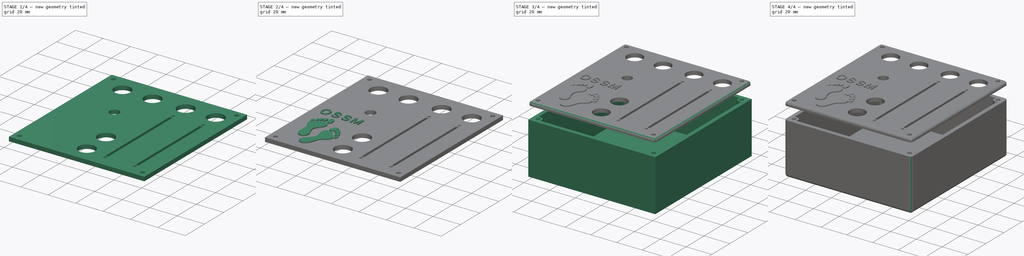
[diagram: build sequence overview — one tinted view per stage of 4, left to right]
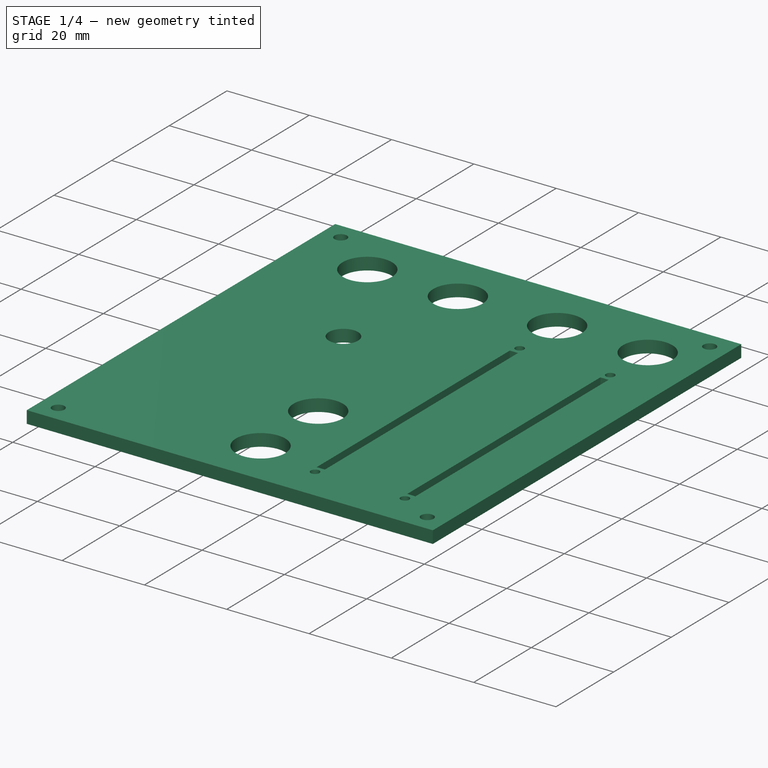
[diagram: stage 1 of 4 — iso view after this stage's code; geometry added in this stage tinted green]
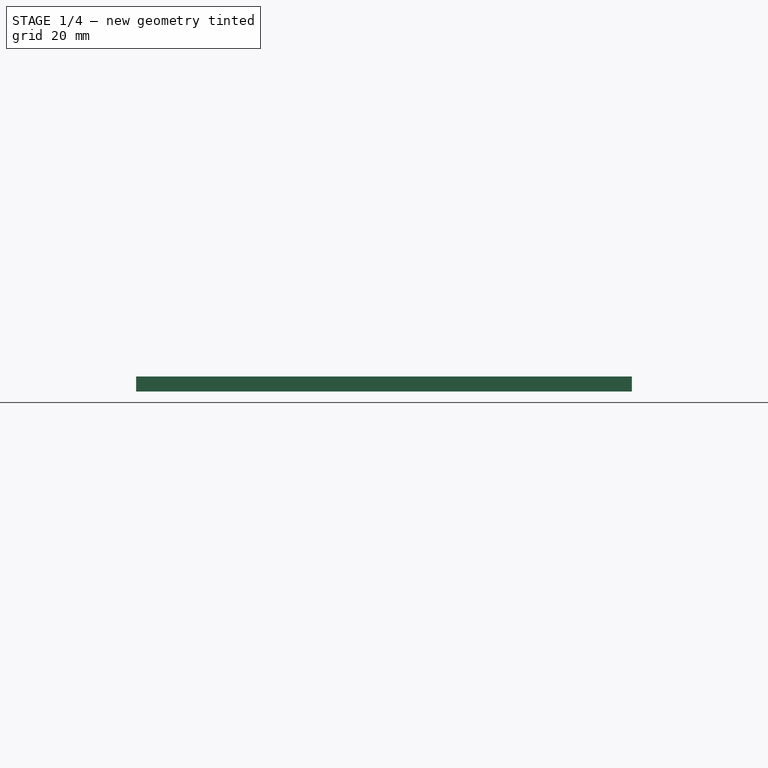
[diagram: stage 1 of 4 — front view after this stage's code; geometry added in this stage tinted green]
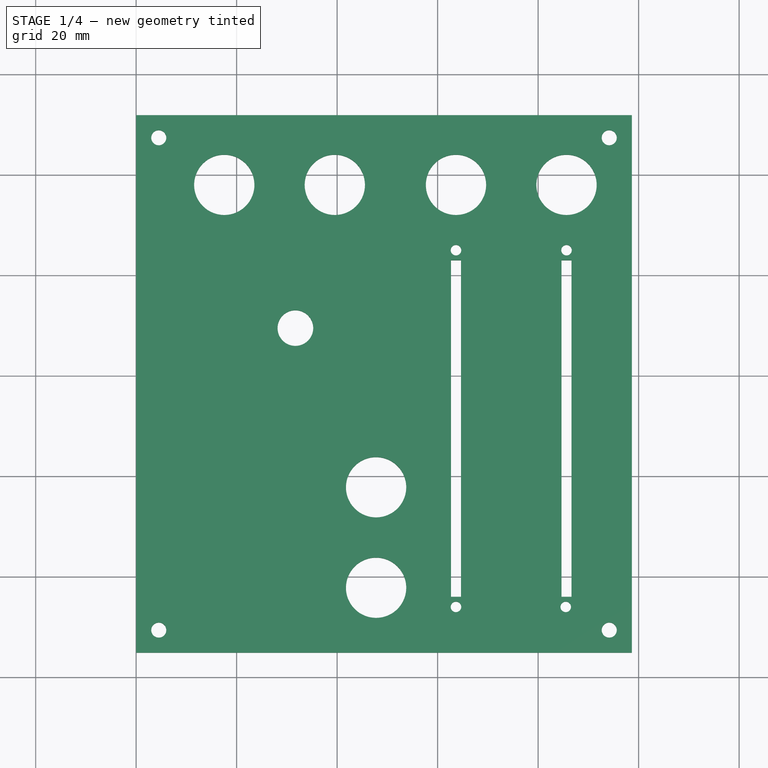
[diagram: stage 1 of 4 — top view after this stage's code; geometry added in this stage tinted green]
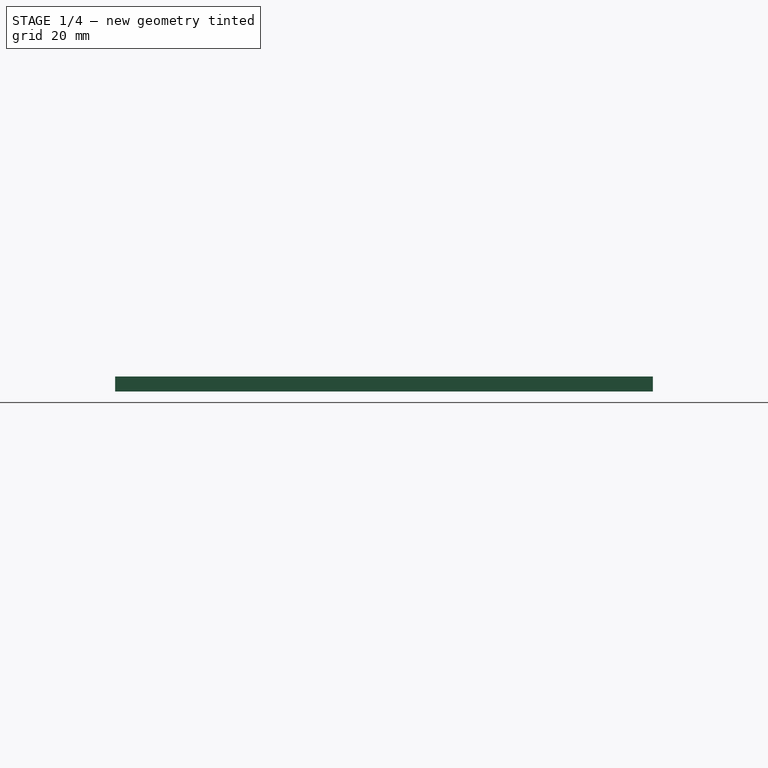
[diagram: stage 1 of 4 — right view after this stage's code; geometry added in this stage tinted green]
FCSTD DOCUMENT  (FreeCAD 1.0R39109 (Git))
Label: midi-panel-layout
License: All rights reserved
objects: Sketcher::SketchObject×9, PartDesign::Pad×5, PartDesign::Pocket×3, PartDesign::Fillet×2, PartDesign::Body×2, App::Part×1
note: 50 computed .brp shape members not serialized (recipe doc carries the construction recipe); baked Part::Feature solids carry a one-line shape summary decoded from their .brp

FEATURE [Sketcher::SketchObject] Sketch  label="layout"
  ArcFitTolerance = 1e-06
  AttachmentSupport = -> [XY_Plane001]
  FullyConstrained = false
  MakeInternals = false
  MapMode = 5
  sketch-geometry (33):
    g0: LineSegment StartX=-55.3487 StartY=111.875 StartZ=0 EndX=-55.3487 EndY=4.87529 EndZ=0
    g1: LineSegment StartX=-55.3487 StartY=4.87529 StartZ=0 EndX=98.6513 EndY=4.87529 EndZ=0
    g2: LineSegment StartX=98.6513 StartY=4.87529 StartZ=0 EndX=98.6513 EndY=111.875 EndZ=0
    g3: LineSegment StartX=98.6513 StartY=111.875 StartZ=0 EndX=-55.3487 EndY=111.875 EndZ=0
    g4: Circle CenterX=12.6513 CenterY=98.8753 CenterZ=0 NormalX=0 NormalY=0 NormalZ=1 AngleXU=0 Radius=9
    g5: Circle CenterX=34.6513 CenterY=98.8753 CenterZ=0 NormalX=0 NormalY=0 NormalZ=1 AngleXU=0 Radius=9
    g6: Circle CenterX=63.6513 CenterY=98.8753 CenterZ=0 NormalX=0 NormalY=0 NormalZ=1 AngleXU=0 Radius=9
    g7: Circle CenterX=85.6513 CenterY=98.8753 CenterZ=0 NormalX=0 NormalY=0 NormalZ=1 AngleXU=0 Radius=9
    g8: LineSegment StartX=81.9013 StartY=84.8753 StartZ=0 EndX=81.9013 EndY=9.87529 EndZ=0
    g9: LineSegment StartX=81.9013 StartY=9.87529 StartZ=0 EndX=89.4013 EndY=9.87529 EndZ=0
    g10: LineSegment StartX=89.4013 StartY=9.87529 StartZ=0 EndX=89.4013 EndY=84.8753 EndZ=0
    g11: LineSegment StartX=81.9013 StartY=84.8753 StartZ=0 EndX=85.6513 EndY=84.8753 EndZ=0
    g12: LineSegment StartX=85.6513 StartY=84.8753 StartZ=0 EndX=89.4013 EndY=84.8753 EndZ=0
    g13: LineSegment StartX=59.9013 StartY=84.8753 StartZ=0 EndX=59.9013 EndY=9.87529 EndZ=0
    g14: LineSegment StartX=59.9013 StartY=9.87529 StartZ=0 EndX=67.4013 EndY=9.87529 EndZ=0
    g15: LineSegment StartX=67.4013 StartY=9.87529 StartZ=0 EndX=67.4013 EndY=84.8753 EndZ=0
    g16: LineSegment StartX=59.9013 StartY=84.8753 StartZ=0 EndX=63.6513 EndY=84.8753 EndZ=0
    g17: LineSegment StartX=63.6513 StartY=84.8753 StartZ=0 EndX=67.4013 EndY=84.8753 EndZ=0
    g18: Circle CenterX=-41.3487 CenterY=59.8753 CenterZ=0 NormalX=0 NormalY=0 NormalZ=1 AngleXU=0 Radius=10
    g19: Circle CenterX=-41.3487 CenterY=34.8753 CenterZ=0 NormalX=0 NormalY=0 NormalZ=1 AngleXU=0 Radius=10
    g20: Circle CenterX=-16.3487 CenterY=34.8753 CenterZ=0 NormalX=0 NormalY=0 NormalZ=1 AngleXU=0 Radius=10
    g21: Circle CenterX=-16.3487 CenterY=59.8753 CenterZ=0 NormalX=0 NormalY=0 NormalZ=1 AngleXU=0 Radius=10
    g22: LineSegment [constr] StartX=-41.3487 StartY=59.8753 StartZ=0 EndX=-16.3487 EndY=59.8753 EndZ=0
    g23: LineSegment [constr] StartX=-16.3487 StartY=34.8753 StartZ=0 EndX=-41.3487 EndY=34.8753 EndZ=0
    g24: LineSegment [constr] StartX=-41.3487 StartY=34.8753 StartZ=0 EndX=-41.3487 EndY=59.8753 EndZ=0
    g25: Circle CenterX=23.6513 CenterY=47.3753 CenterZ=0 NormalX=0 NormalY=0 NormalZ=1 AngleXU=0 Radius=11
    g26: LineSegment [constr] StartX=-16.3487 StartY=59.8753 StartZ=0 EndX=-16.3487 EndY=47.3753 EndZ=0
    g27: LineSegment [constr] StartX=-16.3487 StartY=47.3753 StartZ=0 EndX=-16.3487 EndY=34.8753 EndZ=0
    g28: LineSegment [constr] StartX=-16.3487 StartY=47.3753 StartZ=0 EndX=23.6513 EndY=47.3753 EndZ=0
    g29: LineSegment [constr] StartX=63.6513 StartY=84.8753 StartZ=0 EndX=63.6513 EndY=47.3753 EndZ=0
    g30: LineSegment [constr] StartX=23.6513 StartY=47.3753 StartZ=0 EndX=63.6513 EndY=47.3753 EndZ=0
    g31: LineSegment [constr] StartX=12.6513 StartY=98.8753 StartZ=0 EndX=23.6513 EndY=98.8753 EndZ=0
    g32: LineSegment [constr] StartX=23.6513 StartY=98.8753 StartZ=0 EndX=34.6513 EndY=98.8753 EndZ=0
  constraints (90):
    c: Coincident(g0,g1)
    c: Coincident(g1,g2)
    c: Coincident(g2,g3)
    c: Coincident(g3,g0)
    c: Vertical(g0)
    c: Vertical(g2)
    c: Horizontal(g1)
    c: Horizontal(g3)
    c: Diameter(g4) = 18
    c: Diameter(g7) = 18
    c: Diameter(g6) = 18
    c: Diameter(g5) = 18
    c: Distance(g4,g3) = 4
    c: Horizontal(g4,g5)
    c: Horizontal(g5,g6)
    c: Horizontal(g6,g7)
    c: Distance(g7,g2) = 4
    c: Distance(g7,g6) = 4
    c: Distance(g5,g4) = 4
    c: Coincident(g8,g9)
    c: Coincident(g9,g10)
    c: Vertical(g8)
    c: Vertical(g10)
    c: Horizontal(g9)
    c: DistanceY(g8,g8) = 75
    c: Distance(g10,g8) = 7.5
    c: Coincident(g11,g8)
    c: Horizontal(g11)
    c: Coincident(g12,g11)
    c: Coincident(g12,g10)
    c: Horizontal(g12)
    c: Equal(g12,g11)
    c: Vertical(g7,g11)
    c: Distance(g11,g7) = 5
    c: Coincident(g13,g14)
    c: Coincident(g14,g15)
    c: Vertical(g13)
    c: Vertical(g15)
    c: Horizontal(g14)
    c: Equal(g13,g8)
    c: Coincident(g13,g16)
    c: Horizontal(g16)
    c: Coincident(g16,g17)
    c: Coincident(g17,g15)
    c: Horizontal(g17)
    c: Equal(g17,g16)
    c: Distance(g15,g13) = 7.5
    c: Vertical(g16,g6)
    c: Horizontal(g16,g11)
    c: Diameter(g18) = 20
    c: Equal(g18,g21)
    c: Equal(g21,g20)
    c: Equal(g20,g19)
    c: Coincident(g22,g18)
    c: Coincident(g22,g21)
    c: Coincident(g23,g19)
    c: Coincident(g23,g24)
    c: Coincident(g24,g22)
    c: Vertical(g24)
    c: Horizontal(g22)
    c: Horizontal(g23)
    c: DistanceX(g22,g22) = 25
    c: DistanceY(g20,g22) = 25
    c: Diameter(g25) = 22
    c: Coincident(g26,g21)
    c: Vertical(g26)
    c: Coincident(g26,g27)
    c: Coincident(g27,g20)
    c: Vertical(g27)
    c: Coincident(g23,g20)
    c: Equal(g26,g27)
    c: Horizontal(g26,g25)
    c: Coincident(g26,g28)
    c: Coincident(g28,g25)
    c: Distance(g19,g0) = 4
    c: Distance(g13,g1) = 5
    c: Coincident(g29,g16)
    c: Vertical(g29)
    c: Coincident(g30,g25)
    c: Coincident(g30,g29)
    c: Horizontal(g30)
    c: Equal(g30,g28)
    c: DistanceY(g29,g29) = 37.5
    c: DistanceX(g28,g28) = 40
    c: Coincident(g31,g4)
    c: Horizontal(g31)
    c: Coincident(g31,g32)
    c: Coincident(g32,g5)
    c: Equal(g32,g31)
    c: Vertical(g31,g25)
FEATURE [Sketcher::SketchObject] Sketch001  label="lid"
  ArcFitTolerance = 1e-06
  AttachmentSupport = -> [XY_Plane001]
  FullyConstrained = true
  MakeInternals = false
  MapMode = 5
  sketch-geometry (8):
    g0: LineSegment StartX=0 StartY=111.88 StartZ=0 EndX=0 EndY=4.88 EndZ=0
    g1: LineSegment StartX=0 StartY=4.88 StartZ=0 EndX=98.65 EndY=4.88 EndZ=0
    g2: LineSegment StartX=98.65 StartY=4.88 StartZ=0 EndX=98.65 EndY=111.88 EndZ=0
    g3: LineSegment StartX=98.65 StartY=111.88 StartZ=0 EndX=0 EndY=111.88 EndZ=0
    g4: Circle CenterX=4.5 CenterY=107.38 CenterZ=0 NormalX=0 NormalY=0 NormalZ=1 AngleXU=0 Radius=1.5
    g5: Circle CenterX=4.5 CenterY=9.38 CenterZ=0 NormalX=0 NormalY=0 NormalZ=1 AngleXU=0 Radius=1.5
    g6: Circle CenterX=94.15 CenterY=9.38 CenterZ=0 NormalX=0 NormalY=0 NormalZ=1 AngleXU=0 Radius=1.5
    g7: Circle CenterX=94.15 CenterY=107.38 CenterZ=0 NormalX=0 NormalY=0 NormalZ=1 AngleXU=0 Radius=1.5
  constraints (24):
    c: Coincident(g0,g1)
    c: Coincident(g1,g2)
    c: Coincident(g2,g3)
    c: Coincident(g3,g0)
    c: Vertical(g0)
    c: Vertical(g2)
    c: Horizontal(g1)
    c: Horizontal(g3)
    c: DistanceY(g0,g0) = 107
    c: Distance(g0,g-1) = 4.88
    c: Diameter(g4) = 3
    c: Equal(g4,g5)
    c: Equal(g5,g6)
    c: Equal(g6,g7)
    c: Horizontal(g7,g4)
    c: Vertical(g4,g5)
    c: Horizontal(g5,g6)
    c: Vertical(g6,g7)
    c: Distance(g7,g2) = 3
    c: Distance(g4,g0) = 3
    c: Distance(g4,g3) = 3
    c: Distance(g5,g1) = 3
    c: Distance(g1,g-2) = 98.65
    c: PointOnObject(g0,g-2)
FEATURE [Sketcher::SketchObject] Sketch002  label="holes"
  ArcFitTolerance = 1e-06
  AttachmentOffset = pos=(0,0,5) rot=(0,0,1;0rad)
  AttachmentSupport = -> [XY_Plane001]
  FullyConstrained = false
  MakeInternals = false
  MapMode = 5
  Placement = pos=(0,0,5) rot=(0,0,1;0rad)
  sketch-geometry (25):
    g0: Circle CenterX=17.5356 CenterY=98 CenterZ=0 NormalX=0 NormalY=0 NormalZ=1 AngleXU=0 Radius=6
    g1: Circle CenterX=39.5356 CenterY=98 CenterZ=0 NormalX=0 NormalY=0 NormalZ=1 AngleXU=0 Radius=6
    g2: Circle CenterX=63.65 CenterY=98 CenterZ=0 NormalX=0 NormalY=0 NormalZ=1 AngleXU=0 Radius=6
    g3: Circle CenterX=85.65 CenterY=98 CenterZ=0 NormalX=0 NormalY=0 NormalZ=1 AngleXU=0 Radius=6
    g4: Circle CenterX=31.6898 CenterY=69.4932 CenterZ=0 NormalX=0 NormalY=0 NormalZ=1 AngleXU=0 Radius=3.55
    g5: LineSegment [constr] StartX=63.65 StartY=87 StartZ=0 EndX=63.65 EndY=47.38 EndZ=0
    g6: LineSegment [constr] StartX=17.5356 StartY=98 StartZ=0 EndX=28.5356 EndY=98 EndZ=0
    g7: LineSegment [constr] StartX=28.5356 StartY=98 StartZ=0 EndX=39.5356 EndY=98 EndZ=0
    g8: LineSegment StartX=62.65 StartY=83 StartZ=0 EndX=62.65 EndY=16 EndZ=0
    g9: LineSegment StartX=62.65 StartY=16 StartZ=0 EndX=64.65 EndY=16 EndZ=0
    g10: LineSegment StartX=64.65 StartY=16 StartZ=0 EndX=64.65 EndY=83 EndZ=0
    g11: LineSegment StartX=62.65 StartY=83 StartZ=0 EndX=63.65 EndY=83 EndZ=0
    g12: LineSegment StartX=63.65 StartY=83 StartZ=0 EndX=64.65 EndY=83 EndZ=0
    g13: Circle CenterX=63.65 CenterY=85 CenterZ=0 NormalX=0 NormalY=0 NormalZ=1 AngleXU=0 Radius=1.05
    g14: LineSegment [constr] StartX=85.65 StartY=87 StartZ=0 EndX=85.65 EndY=47.38 EndZ=0
    g15: LineSegment StartX=84.65 StartY=83 StartZ=0 EndX=84.65 EndY=16 EndZ=0
    g16: LineSegment StartX=84.65 StartY=16 StartZ=0 EndX=86.65 EndY=16 EndZ=0
    g17: LineSegment StartX=86.65 StartY=16 StartZ=0 EndX=86.65 EndY=83 EndZ=0
    g18: LineSegment StartX=84.65 StartY=83 StartZ=0 EndX=85.65 EndY=83 EndZ=0
    g19: LineSegment StartX=85.65 StartY=83 StartZ=0 EndX=86.65 EndY=83 EndZ=0
    g20: Circle CenterX=85.65 CenterY=85 CenterZ=0 NormalX=0 NormalY=0 NormalZ=1 AngleXU=0 Radius=1.05
    g21: Circle CenterX=63.65 CenterY=14 CenterZ=0 NormalX=0 NormalY=0 NormalZ=1 AngleXU=0 Radius=1.05
    g22: Circle CenterX=85.4919 CenterY=14 CenterZ=0 NormalX=0 NormalY=0 NormalZ=1 AngleXU=0 Radius=1.05
    g23: Circle CenterX=47.75 CenterY=17.8091 CenterZ=0 NormalX=0 NormalY=0 NormalZ=1 AngleXU=0 Radius=6
    g24: Circle CenterX=47.75 CenterY=37.8091 CenterZ=0 NormalX=0 NormalY=0 NormalZ=1 AngleXU=0 Radius=6
  constraints (69):
    c: Diameter(g0) = 12
    c: Horizontal(g0,g1)
    c: Horizontal(g1,g2)
    c: Horizontal(g2,g3)
    c: Vertical(g3,g14)
    c: Distance(g14,g3) = 5
    c: Vertical(g5,g2)
    c: Horizontal(g5,g14)
    c: Diameter(g4) = 7.1
    c: Vertical(g5)
    c: Coincident(g6,g0)
    c: Horizontal(g6)
    c: Coincident(g6,g7)
    c: Coincident(g7,g1)
    c: Equal(g7,g6)
    c: Equal(g0,g1)
    c: Equal(g1,g2)
    c: Equal(g2,g3)
    c: DistanceX(g2,g3) = 22
    c: DistanceX(g0,g1) = 22
    c: Coincident(g8,g9)
    c: Coincident(g9,g10)
    c: Vertical(g8)
    c: Vertical(g10)
    c: Horizontal(g9)
    c: DistanceY(g10,g10) = 67
    c: Coincident(g8,g11)
    c: Coincident(g11,g12)
    c: Coincident(g12,g10)
    c: Equal(g12,g11)
    c: Horizontal(g11)
    c: Horizontal(g12)
    c: Distance(g8,g10) = 2
    c: PointOnObject(g11,g5)
    c: PointOnObject(g13,g5)
    c: Diameter(g13) = 2.1
    c: DistanceY(g11,g13) = 2
    c: Vertical(g14)
    c: Horizontal(g14,g5)
    c: Coincident(g15,g16)
    c: Coincident(g16,g17)
    c: Vertical(g15)
    c: Vertical(g17)
    c: Horizontal(g16)
    c: Coincident(g15,g18)
    c: PointOnObject(g18,g14)
    c: Horizontal(g18)
    c: Coincident(g18,g19)
    c: Coincident(g19,g17)
    c: Horizontal(g19)
    c: Equal(g19,g18)
    c: Distance(g15,g17) = 2
    c: Horizontal(g18,g11)
    c: PointOnObject(g20,g14)
    c: Equal(g20,g13)
    c: Horizontal(g13,g20)
    c: Distance(g13,g5) = 2
    c: Equal(g15,g8)
    c: Equal(g13,g21)
    c: Equal(g21,g22)
    c: Vertical(g21,g5)
    c: Horizontal(g22,g21)
    c: Distance(g21,g9) = 2
    c: Distance(g0,g-1) = 98
    c: Diameter(g23) = 12
    c: Distance(g23,g-2) = 47.75
    c: Equal(g24,g23)
    c: Vertical(g23,g24)
    c: DistanceY(g23,g24) = 20
FEATURE [Sketcher::SketchObject] Sketch004  label="feet"
  ArcFitTolerance = 1e-06
  AttachmentOffset = pos=(60,-56,3) rot=(0,0,1;0rad)
  AttachmentSupport = -> [XY_Plane001]
  FullyConstrained = false
  MakeInternals = false
  MapMode = 5
  Placement = pos=(60,-56,3) rot=(0,0,1;0rad)
  sketch-geometry (58):
    g0: BSplineCurve PolesCount=4 KnotsCount=2 Degree=3 IsPeriodic=0
    g1: BSplineCurve PolesCount=4 KnotsCount=2 Degree=3 IsPeriodic=0
    g2: BSplineCurve PolesCount=4 KnotsCount=2 Degree=3 IsPeriodic=0
    g3: BSplineCurve PolesCount=4 KnotsCount=2 Degree=3 IsPeriodic=0
    g4: BSplineCurve PolesCount=4 KnotsCount=2 Degree=3 IsPeriodic=0
    g5: BSplineCurve PolesCount=4 KnotsCount=2 Degree=3 IsPeriodic=0
    g6: BSplineCurve PolesCount=4 KnotsCount=2 Degree=3 IsPeriodic=0
    g7: BSplineCurve PolesCount=4 KnotsCount=2 Degree=3 IsPeriodic=0
    g8: BSplineCurve PolesCount=4 KnotsCount=2 Degree=3 IsPeriodic=0
    g9: BSplineCurve PolesCount=4 KnotsCount=2 Degree=3 IsPeriodic=0
    g10: BSplineCurve PolesCount=4 KnotsCount=2 Degree=3 IsPeriodic=0
    g11: BSplineCurve PolesCount=4 KnotsCount=2 Degree=3 IsPeriodic=0
    g12: BSplineCurve PolesCount=4 KnotsCount=2 Degree=3 IsPeriodic=0
    g13: BSplineCurve PolesCount=4 KnotsCount=2 Degree=3 IsPeriodic=0
    g14: BSplineCurve PolesCount=4 KnotsCount=2 Degree=3 IsPeriodic=0
    g15: BSplineCurve PolesCount=4 KnotsCount=2 Degree=3 IsPeriodic=0
    g16: BSplineCurve PolesCount=4 KnotsCount=2 Degree=3 IsPeriodic=0
    g17: BSplineCurve PolesCount=4 KnotsCount=2 Degree=3 IsPeriodic=0
    g18: BSplineCurve PolesCount=4 KnotsCount=2 Degree=3 IsPeriodic=0
    g19: BSplineCurve PolesCount=4 KnotsCount=2 Degree=3 IsPeriodic=0
    g20: BSplineCurve PolesCount=4 KnotsCount=2 Degree=3 IsPeriodic=0
    g21: BSplineCurve PolesCount=4 KnotsCount=2 Degree=3 IsPeriodic=0
    g22: BSplineCurve PolesCount=4 KnotsCount=2 Degree=3 IsPeriodic=0
    g23: BSplineCurve PolesCount=4 KnotsCount=2 Degree=3 IsPeriodic=0
    g24: BSplineCurve PolesCount=4 KnotsCount=2 Degree=3 IsPeriodic=0
    g25: BSplineCurve PolesCount=4 KnotsCount=2 Degree=3 IsPeriodic=0
    g26: BSplineCurve PolesCount=4 KnotsCount=2 Degree=3 IsPeriodic=0
    g27: BSplineCurve PolesCount=4 KnotsCount=2 Degree=3 IsPeriodic=0
    g28: BSplineCurve PolesCount=4 KnotsCount=2 Degree=3 IsPeriodic=0
    g29: BSplineCurve PolesCount=4 KnotsCount=2 Degree=3 IsPeriodic=0
    g30: BSplineCurve PolesCount=4 KnotsCount=2 Degree=3 IsPeriodic=0
    g31: BSplineCurve PolesCount=4 KnotsCount=2 Degree=3 IsPeriodic=0
    g32: BSplineCurve PolesCount=4 KnotsCount=2 Degree=3 IsPeriodic=0
    g33: BSplineCurve PolesCount=4 KnotsCount=2 Degree=3 IsPeriodic=0
    g34: BSplineCurve PolesCount=4 KnotsCount=2 Degree=3 IsPeriodic=0
    g35: BSplineCurve PolesCount=4 KnotsCount=2 Degree=3 IsPeriodic=0
    g36: BSplineCurve PolesCount=4 KnotsCount=2 Degree=3 IsPeriodic=0
    g37: BSplineCurve PolesCount=4 KnotsCount=2 Degree=3 IsPeriodic=0
    g38: BSplineCurve PolesCount=4 KnotsCount=2 Degree=3 IsPeriodic=0
    g39: BSplineCurve PolesCount=4 KnotsCount=2 Degree=3 IsPeriodic=0
    g40: BSplineCurve PolesCount=4 KnotsCount=2 Degree=3 IsPeriodic=0
    g41: BSplineCurve PolesCount=4 KnotsCount=2 Degree=3 IsPeriodic=0
    g42: BSplineCurve PolesCount=4 KnotsCount=2 Degree=3 IsPeriodic=0
    g43: BSplineCurve PolesCount=4 KnotsCount=2 Degree=3 IsPeriodic=0
    g44: BSplineCurve PolesCount=4 KnotsCount=2 Degree=3 IsPeriodic=0
    g45: BSplineCurve PolesCount=4 KnotsCount=2 Degree=3 IsPeriodic=0
    g46: BSplineCurve PolesCount=4 KnotsCount=2 Degree=3 IsPeriodic=0
    g47: BSplineCurve PolesCount=4 KnotsCount=2 Degree=3 IsPeriodic=0
    g48: BSplineCurve PolesCount=4 KnotsCount=2 Degree=3 IsPeriodic=0
    g49: BSplineCurve PolesCount=4 KnotsCount=2 Degree=3 IsPeriodic=0
    g50: BSplineCurve PolesCount=4 KnotsCount=2 Degree=3 IsPeriodic=0
    g51: BSplineCurve PolesCount=4 KnotsCount=2 Degree=3 IsPeriodic=0
    g52: BSplineCurve PolesCount=4 KnotsCount=2 Degree=3 IsPeriodic=0
    g53: BSplineCurve PolesCount=4 KnotsCount=2 Degree=3 IsPeriodic=0
    g54: BSplineCurve PolesCount=4 KnotsCount=2 Degree=3 IsPeriodic=0
    g55: BSplineCurve PolesCount=4 KnotsCount=2 Degree=3 IsPeriodic=0
    g56: BSplineCurve PolesCount=4 KnotsCount=2 Degree=3 IsPeriodic=0
    g57: BSplineCurve PolesCount=4 KnotsCount=2 Degree=3 IsPeriodic=0
  constraints (58):
    c: Coincident(g0,g1)
    c: Coincident(g1,g2)
    c: Coincident(g2,g3)
    c: Coincident(g3,g0)
    c: Coincident(g4,g5)
    c: Coincident(g5,g6)
    c: Coincident(g6,g4)
    c: Coincident(g7,g8)
    c: Coincident(g8,g9)
    c: Coincident(g9,g10)
    c: Coincident(g10,g7)
    c: Coincident(g11,g12)
    c: Coincident(g12,g13)
    c: Coincident(g13,g14)
    c: Coincident(g14,g11)
    c: Coincident(g15,g16)
    c: Coincident(g16,g17)
    c: Coincident(g17,g15)
    c: Coincident(g18,g19)
    c: Coincident(g19,g20)
    c: Coincident(g20,g21)
    c: Coincident(g21,g18)
    c: Coincident(g22,g23)
    c: Coincident(g23,g24)
    c: Coincident(g24,g22)
    c: Coincident(g25,g26)
    c: Coincident(g26,g27)
    c: Coincident(g27,g28)
    c: Coincident(g28,g25)
    c: Coincident(g29,g30)
    c: Coincident(g30,g31)
    c: Coincident(g31,g29)
    c: Coincident(g32,g33)
    c: Coincident(g33,g34)
    c: Coincident(g34,g35)
    c: Coincident(g35,g32)
    c: Coincident(g36,g37)
    c: Coincident(g37,g38)
    c: Coincident(g38,g39)
    c: Coincident(g39,g40)
    c: Coincident(g40,g41)
    c: Coincident(g41,g42)
    c: Coincident(g42,g43)
    c: Coincident(g43,g44)
    c: Coincident(g44,g45)
    c: Coincident(g45,g46)
    c: Coincident(g46,g36)
    c: Coincident(g47,g48)
    c: Coincident(g48,g49)
    c: Coincident(g49,g50)
    c: Coincident(g50,g51)
    c: Coincident(g51,g52)
    c: Coincident(g52,g53)
    c: Coincident(g53,g54)
    c: Coincident(g54,g55)
    c: Coincident(g55,g56)
    c: Coincident(g56,g57)
    c: Coincident(g57,g47)
FEATURE [PartDesign::Pad] Pad
  Direction = (0,0,1)
  Length = 3
  Length2 = 10
  Profile = -> Sketch001
  ReferenceAxis = -> Sketch001 [N_Axis]
  Refine = true
  Suppressed = false
  Type = 0
FEATURE [PartDesign::Pocket] Pocket
  BaseFeature = -> Pad
  Direction = (0,0,-1)
  Length = 5
  Length2 = 5
  Profile = -> Sketch002
  ReferenceAxis = -> Sketch002 [N_Axis]
  Refine = true
  Suppressed = false
  Type = 1
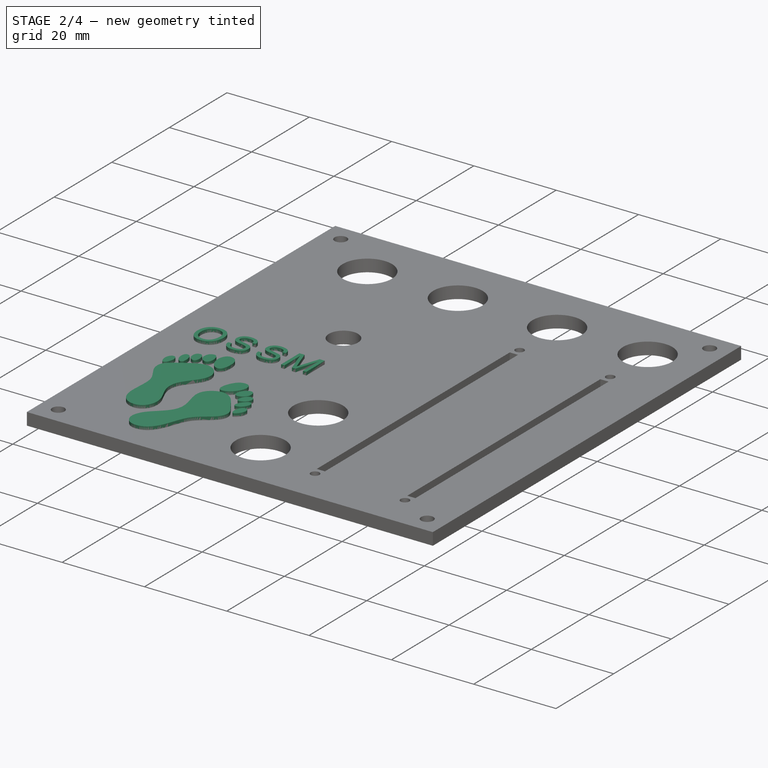
[diagram: stage 2 of 4 — iso view after this stage's code; geometry added in this stage tinted green]
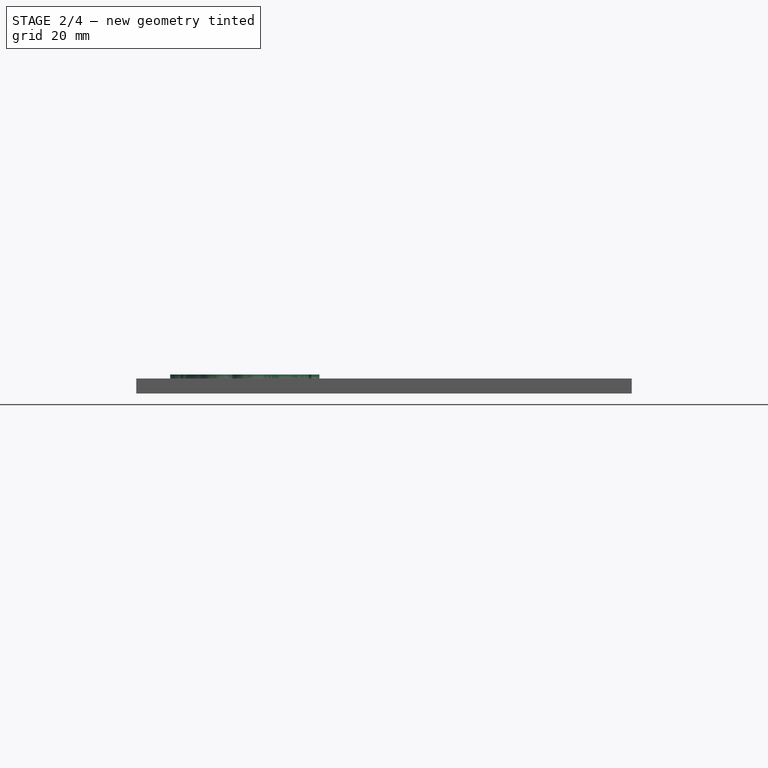
[diagram: stage 2 of 4 — front view after this stage's code; geometry added in this stage tinted green]
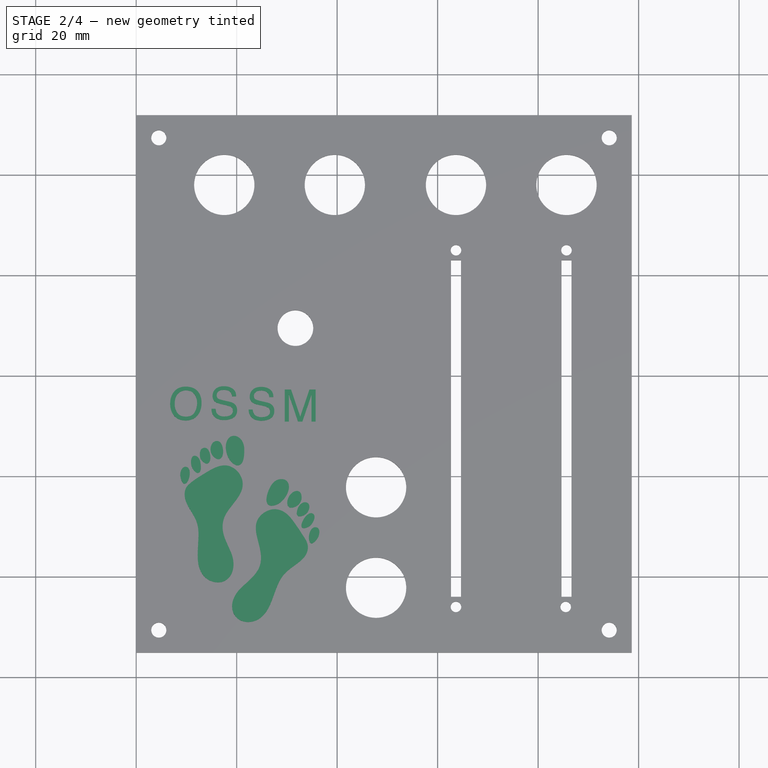
[diagram: stage 2 of 4 — top view after this stage's code; geometry added in this stage tinted green]
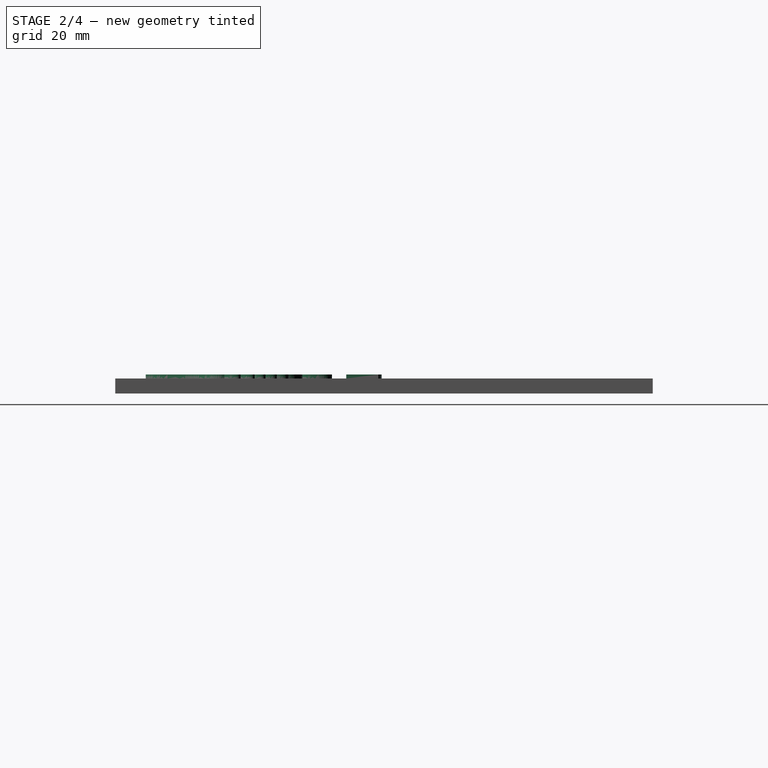
[diagram: stage 2 of 4 — right view after this stage's code; geometry added in this stage tinted green]
FEATURE [PartDesign::Pad] Pad001
  BaseFeature = -> Pocket
  Direction = (0,0,1)
  Length = 0.8
  Length2 = 10
  Profile = -> Sketch004
  ReferenceAxis = -> Sketch004 [N_Axis]
  Refine = true
  Suppressed = false
  Type = 0
FEATURE [Sketcher::SketchObject] Sketch005  label="pot position holes"
  ArcFitTolerance = 1e-06
  AttachmentSupport = -> [XY_Plane001]
  FullyConstrained = false
  MakeInternals = false
  MapMode = 5
  sketch-geometry (4):
    g0: Circle CenterX=-47.0069 CenterY=65.5369 CenterZ=0 NormalX=0 NormalY=0 NormalZ=1 AngleXU=0 Radius=1.25
    g1: Circle CenterX=-22.0069 CenterY=65.5369 CenterZ=0 NormalX=0 NormalY=0 NormalZ=1 AngleXU=0 Radius=1.25
    g2: Circle CenterX=-22.0069 CenterY=40.5369 CenterZ=0 NormalX=0 NormalY=0 NormalZ=1 AngleXU=0 Radius=1.25
    g3: Circle CenterX=-47.0069 CenterY=40.5369 CenterZ=0 NormalX=0 NormalY=0 NormalZ=1 AngleXU=0 Radius=1.25
  constraints (4):
    c: Diameter(g0) = 2.5
    c: Equal(g1,g2)
    c: Equal(g2,g3)
    c: Equal(g3,g0)
FEATURE [PartDesign::Pocket] Pocket001
  BaseFeature = -> Pad001
  Direction = (0,0,-1)
  Length = 2
  Length2 = 5
  Profile = -> Sketch005
  ReferenceAxis = -> Sketch005 [N_Axis]
  Refine = true
  Reversed = true
  Suppressed = false
  Type = 0
FEATURE [PartDesign::Body] Body001
  AllowCompound = true
  Group = -> [Sketch006,Pad002,Sketch008,Pad004,Sketch009,Pocket002,Fillet]
  Origin = -> Origin002
  Tip = -> Fillet
FEATURE [PartDesign::Pad] Pad005
  BaseFeature = -> Pocket001
  Direction = (0,0,1)
  Length = 0.8
  Length2 = 10
  Profile = -> Sketch007
  ReferenceAxis = -> Sketch007 [N_Axis]
  Refine = true
  Suppressed = false
  Type = 0
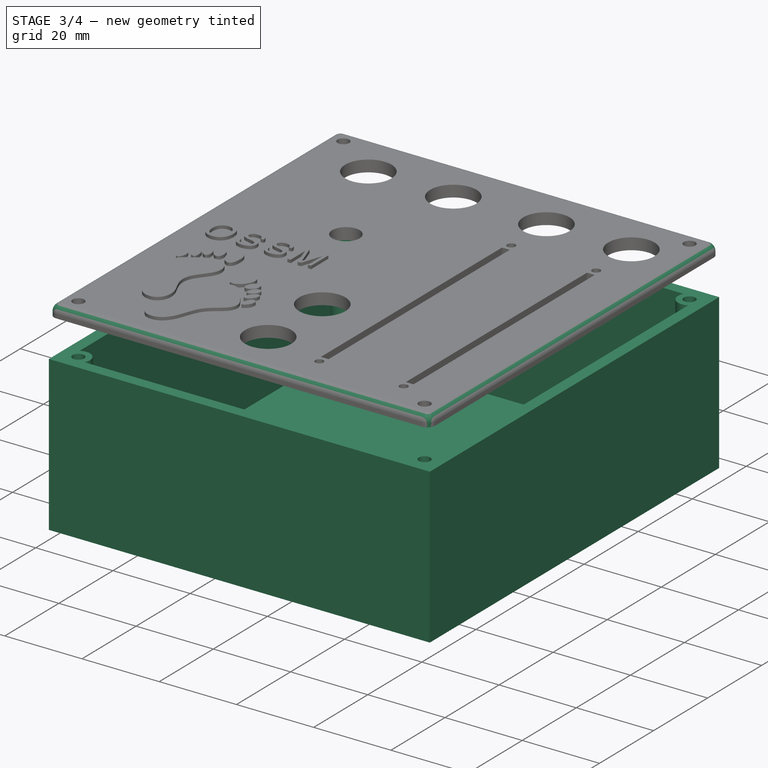
[diagram: stage 3 of 4 — iso view after this stage's code; geometry added in this stage tinted green]
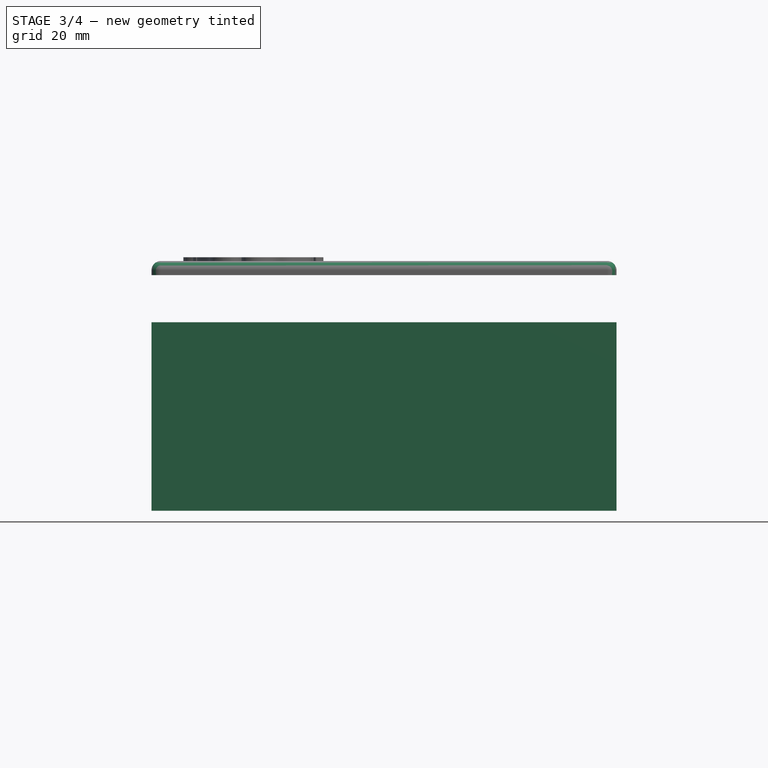
[diagram: stage 3 of 4 — front view after this stage's code; geometry added in this stage tinted green]
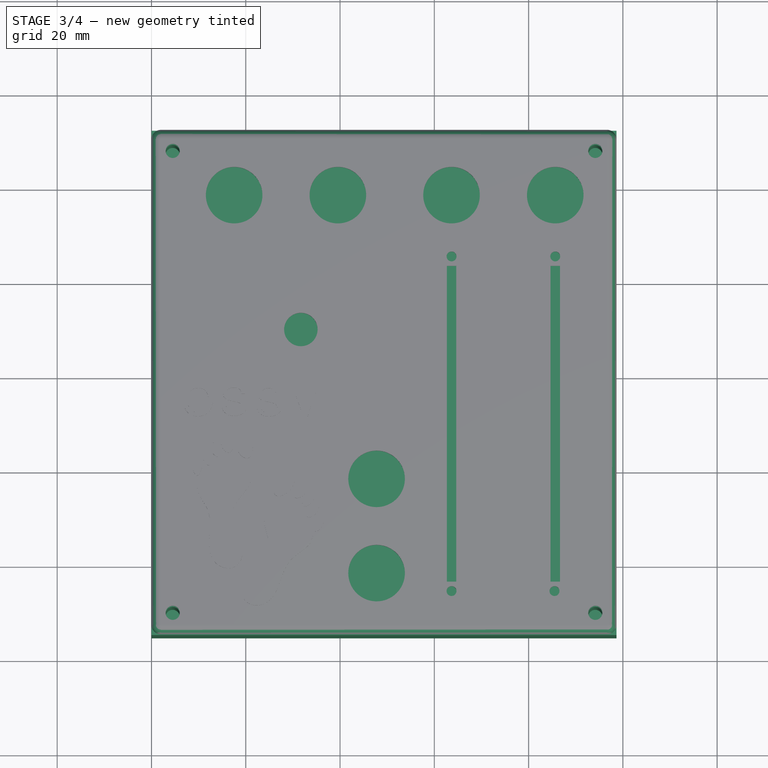
[diagram: stage 3 of 4 — top view after this stage's code; geometry added in this stage tinted green]
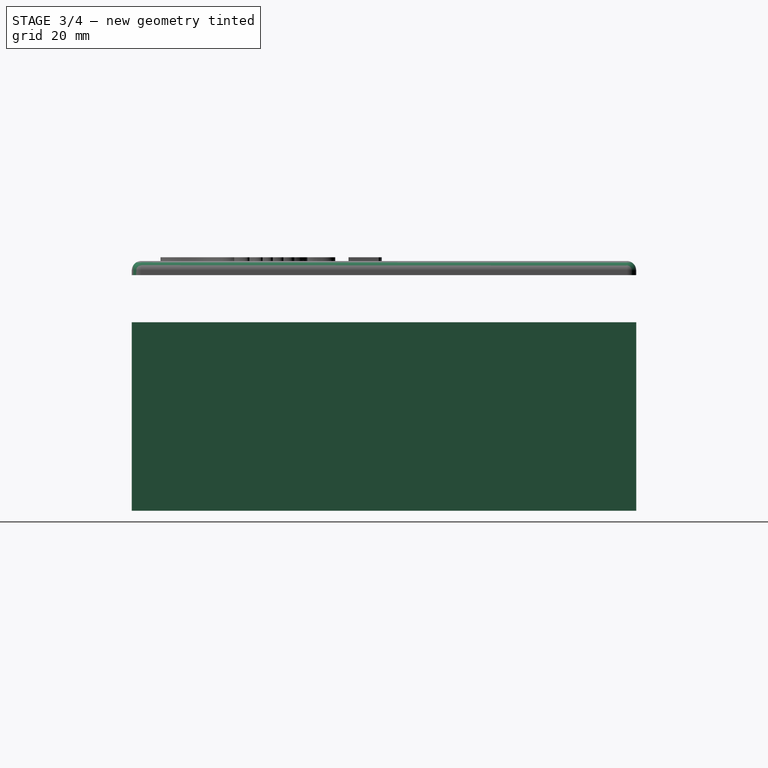
[diagram: stage 3 of 4 — right view after this stage's code; geometry added in this stage tinted green]
FEATURE [Sketcher::SketchObject] Sketch006  label="walls"
  ArcFitTolerance = 1e-06
  AttachmentOffset = pos=(0,0,-50) rot=(0,0,1;0rad)
  AttachmentSupport = -> [XY_Plane002]
  FullyConstrained = true
  MakeInternals = false
  MapMode = 5
  Placement = pos=(0,0,-50) rot=(0,0,1;0rad)
  sketch-geometry (16):
    g0: LineSegment StartX=0 StartY=111.88 StartZ=0 EndX=0 EndY=4.88 EndZ=0
    g1: LineSegment StartX=0 StartY=4.88 StartZ=0 EndX=98.65 EndY=4.88 EndZ=0
    g2: LineSegment StartX=98.65 StartY=4.88 StartZ=0 EndX=98.65 EndY=111.88 EndZ=0
    g3: LineSegment StartX=98.65 StartY=111.88 StartZ=0 EndX=0 EndY=111.88 EndZ=0
    g4: Circle CenterX=4.5 CenterY=107.38 CenterZ=0 NormalX=0 NormalY=0 NormalZ=1 AngleXU=0 Radius=1.5
    g5: Circle CenterX=4.5 CenterY=9.38 CenterZ=0 NormalX=0 NormalY=0 NormalZ=1 AngleXU=0 Radius=1.5
    g6: Circle CenterX=94.15 CenterY=9.38 CenterZ=0 NormalX=0 NormalY=0 NormalZ=1 AngleXU=0 Radius=1.5
    g7: Circle CenterX=94.15 CenterY=107.38 CenterZ=0 NormalX=0 NormalY=0 NormalZ=1 AngleXU=0 Radius=1.5
    g8: LineSegment StartX=3 StartY=104.782 StartZ=0 EndX=3 EndY=11.9781 EndZ=0
    g9: LineSegment StartX=7.09808 StartY=7.88 StartZ=0 EndX=91.5519 EndY=7.88 EndZ=0
    g10: LineSegment StartX=91.5519 StartY=108.88 StartZ=0 EndX=7.09808 EndY=108.88 EndZ=0
    g11: ArcOfCircle CenterX=4.5 CenterY=107.38 CenterZ=0 NormalX=0 NormalY=0 NormalZ=1 AngleXU=0 Radius=3 StartAngle=4.18879 EndAngle=6.80678
    g12: ArcOfCircle CenterX=94.15 CenterY=107.38 CenterZ=0 NormalX=0 NormalY=0 NormalZ=1 AngleXU=0 Radius=3 StartAngle=2.61799 EndAngle=5.23599
    g13: ArcOfCircle CenterX=4.5 CenterY=9.38 CenterZ=0 NormalX=0 NormalY=0 NormalZ=1 AngleXU=0 Radius=3 StartAngle=5.75959 EndAngle=8.37758
    g14: ArcOfCircle CenterX=94.15 CenterY=9.38 CenterZ=0 NormalX=0 NormalY=0 NormalZ=1 AngleXU=0 Radius=3 StartAngle=1.0472 EndAngle=3.66519
    g15: LineSegment StartX=95.65 StartY=11.9781 StartZ=0 EndX=95.65 EndY=104.782 EndZ=0
  constraints (49):
    c: Coincident(g0,g1)
    c: Coincident(g1,g2)
    c: Coincident(g2,g3)
    c: Coincident(g3,g0)
    c: Vertical(g0)
    c: Vertical(g2)
    c: Horizontal(g1)
    c: Horizontal(g3)
    c: DistanceY(g0,g0) = 107
    c: Distance(g0,g-1) = 4.88
    c: Diameter(g4) = 3
    c: Equal(g4,g5)
    c: Equal(g5,g6)
    c: Equal(g6,g7)
    c: Horizontal(g7,g4)
    c: Vertical(g4,g5)
    c: Horizontal(g5,g6)
    c: Vertical(g6,g7)
    c: Distance(g7,g2) = 3
    c: Vertical(g8)
    c: Horizontal(g9)
    c: Horizontal(g10)
    c: Radius(g11) = 3
    c: Coincident(g11,g4)
    c: Radius(g12) = 3
    c: Coincident(g12,g7)
    c: Coincident(g8,g11)
    c: Coincident(g10,g11)
    c: Coincident(g10,g12)
    c: Coincident(g15,g12)
    c: Distance(g15,g2) = 3
    c: Distance(g10,g3) = 3
    c: Distance(g4,g0) = 4.5
    c: Distance(g4,g3) = 4.5
    c: Distance(g8,g0) = 3
    c: Radius(g13) = 3
    c: Coincident(g13,g5)
    c: Coincident(g8,g13)
    c: Coincident(g9,g13)
    c: Distance(g9,g1) = 3
    c: Radius(g14) = 3
    c: Coincident(g14,g6)
    c: PointOnObject(g14,g15)
    c: PointOnObject(g15,g14)
    c: Coincident(g9,g14)
    c: Vertical(g15)
    c: Distance(g5,g1) = 4.5
    c: Distance(g1,g-2) = 98.65
    c: PointOnObject(g0,g-2)
FEATURE [PartDesign::Pad] Pad002
  Direction = (0,0,1)
  Length = 40
  Length2 = 10
  Profile = -> Sketch006
  ReferenceAxis = -> Sketch006 [N_Axis]
  Refine = true
  Suppressed = false
  Type = 0
FEATURE [Sketcher::SketchObject] Sketch007  label="ossm"
  ArcFitTolerance = 1e-06
  AttachmentOffset = pos=(58,-57,3) rot=(0,0,1;0rad)
  AttachmentSupport = -> [XY_Plane001]
  FullyConstrained = false
  MakeInternals = false
  MapMode = 5
  Placement = pos=(58,-57,3) rot=(0,0,1;0rad)
  sketch-geometry (92):
    g0: BSplineCurve PolesCount=3 KnotsCount=2 Degree=2 IsPeriodic=0
    g1: BSplineCurve PolesCount=3 KnotsCount=2 Degree=2 IsPeriodic=0
    g2: BSplineCurve PolesCount=3 KnotsCount=2 Degree=2 IsPeriodic=0
    g3: BSplineCurve PolesCount=3 KnotsCount=2 Degree=2 IsPeriodic=0
    g4: BSplineCurve PolesCount=3 KnotsCount=2 Degree=2 IsPeriodic=0
    g5: BSplineCurve PolesCount=3 KnotsCount=2 Degree=2 IsPeriodic=0
    g6: BSplineCurve PolesCount=3 KnotsCount=2 Degree=2 IsPeriodic=0
    g7: BSplineCurve PolesCount=3 KnotsCount=2 Degree=2 IsPeriodic=0
    g8: BSplineCurve PolesCount=3 KnotsCount=2 Degree=2 IsPeriodic=0
    g9: BSplineCurve PolesCount=3 KnotsCount=2 Degree=2 IsPeriodic=0
    g10: BSplineCurve PolesCount=3 KnotsCount=2 Degree=2 IsPeriodic=0
    g11: BSplineCurve PolesCount=3 KnotsCount=2 Degree=2 IsPeriodic=0
    g12: BSplineCurve PolesCount=3 KnotsCount=2 Degree=2 IsPeriodic=0
    g13: BSplineCurve PolesCount=3 KnotsCount=2 Degree=2 IsPeriodic=0
    g14: BSplineCurve PolesCount=3 KnotsCount=2 Degree=2 IsPeriodic=0
    g15: BSplineCurve PolesCount=3 KnotsCount=2 Degree=2 IsPeriodic=0
    g16: LineSegment StartX=-35.6142 StartY=110.274 StartZ=0 EndX=-34.7988 EndY=110.274 EndZ=0
    g17: BSplineCurve PolesCount=3 KnotsCount=2 Degree=2 IsPeriodic=0
    g18: BSplineCurve PolesCount=3 KnotsCount=2 Degree=2 IsPeriodic=0
    g19: BSplineCurve PolesCount=3 KnotsCount=2 Degree=2 IsPeriodic=0
    g20: BSplineCurve PolesCount=3 KnotsCount=2 Degree=2 IsPeriodic=0
    g21: BSplineCurve PolesCount=3 KnotsCount=2 Degree=2 IsPeriodic=0
    g22: BSplineCurve PolesCount=3 KnotsCount=2 Degree=2 IsPeriodic=0
    g23: BSplineCurve PolesCount=3 KnotsCount=2 Degree=2 IsPeriodic=0
    g24: LineSegment StartX=-33.0198 StartY=111.912 StartZ=0 EndX=-32.1215 EndY=111.708 EndZ=0
    g25: BSplineCurve PolesCount=3 KnotsCount=2 Degree=2 IsPeriodic=0
    g26: BSplineCurve PolesCount=3 KnotsCount=2 Degree=2 IsPeriodic=0
    g27: BSplineCurve PolesCount=3 KnotsCount=2 Degree=2 IsPeriodic=0
    g28: BSplineCurve PolesCount=3 KnotsCount=2 Degree=2 IsPeriodic=0
    g29: BSplineCurve PolesCount=3 KnotsCount=2 Degree=2 IsPeriodic=0
    g30: BSplineCurve PolesCount=3 KnotsCount=2 Degree=2 IsPeriodic=0
    g31: LineSegment StartX=-30.6956 StartY=112.748 StartZ=0 EndX=-31.511 EndY=112.748 EndZ=0
    g32: BSplineCurve PolesCount=3 KnotsCount=2 Degree=2 IsPeriodic=0
    g33: BSplineCurve PolesCount=3 KnotsCount=2 Degree=2 IsPeriodic=0
    g34: BSplineCurve PolesCount=3 KnotsCount=2 Degree=2 IsPeriodic=0
    g35: BSplineCurve PolesCount=3 KnotsCount=2 Degree=2 IsPeriodic=0
    g36: BSplineCurve PolesCount=3 KnotsCount=2 Degree=2 IsPeriodic=0
    g37: BSplineCurve PolesCount=3 KnotsCount=2 Degree=2 IsPeriodic=0
    g38: LineSegment StartX=-32.7189 StartY=110.987 StartZ=0 EndX=-33.5866 EndY=111.182 EndZ=0
    g39: BSplineCurve PolesCount=3 KnotsCount=2 Degree=2 IsPeriodic=0
    g40: BSplineCurve PolesCount=3 KnotsCount=2 Degree=2 IsPeriodic=0
    g41: BSplineCurve PolesCount=3 KnotsCount=2 Degree=2 IsPeriodic=0
    g42: BSplineCurve PolesCount=3 KnotsCount=2 Degree=2 IsPeriodic=0
    g43: BSplineCurve PolesCount=3 KnotsCount=2 Degree=2 IsPeriodic=0
    g44: BSplineCurve PolesCount=3 KnotsCount=2 Degree=2 IsPeriodic=0
    g45: LineSegment StartX=-28.4286 StartY=107.86 StartZ=0 EndX=-28.4286 EndY=114.26 EndZ=0
    g46: LineSegment StartX=-27.6001 StartY=107.86 StartZ=0 EndX=-28.4286 EndY=107.86 EndZ=0
    g47: LineSegment StartX=-27.6001 StartY=111.637 StartZ=0 EndX=-27.6001 EndY=107.86 EndZ=0
    g48: BSplineCurve PolesCount=3 KnotsCount=2 Degree=2 IsPeriodic=0
    g49: BSplineCurve PolesCount=3 KnotsCount=2 Degree=2 IsPeriodic=0
    g50: LineSegment StartX=-27.6219 StartY=113.258 StartZ=0 EndX=-27.6219 EndY=113.062 EndZ=0
    g51: LineSegment StartX=-25.7818 StartY=107.86 StartZ=0 EndX=-27.6219 EndY=113.258 EndZ=0
    g52: LineSegment StartX=-24.9228 StartY=107.86 StartZ=0 EndX=-25.7818 EndY=107.86 EndZ=0
    g53: LineSegment StartX=-23.0957 StartY=113.258 StartZ=0 EndX=-24.9228 EndY=107.86 EndZ=0
    g54: BSplineCurve PolesCount=3 KnotsCount=2 Degree=2 IsPeriodic=0
    g55: BSplineCurve PolesCount=3 KnotsCount=2 Degree=2 IsPeriodic=0
    g56: LineSegment StartX=-23.1132 StartY=107.86 StartZ=0 EndX=-23.1132 EndY=111.638 EndZ=0
    g57: LineSegment StartX=-22.289 StartY=107.86 StartZ=0 EndX=-23.1132 EndY=107.86 EndZ=0
    g58: LineSegment StartX=-22.289 StartY=114.26 StartZ=0 EndX=-22.289 EndY=107.86 EndZ=0
    g59: LineSegment StartX=-23.5187 StartY=114.26 StartZ=0 EndX=-22.289 EndY=114.26 EndZ=0
    g60: LineSegment StartX=-25.3457 StartY=108.849 StartZ=0 EndX=-23.5187 EndY=114.26 EndZ=0
    g61: LineSegment StartX=-27.1858 StartY=114.26 StartZ=0 EndX=-25.3457 EndY=108.849 EndZ=0
    g62: LineSegment StartX=-28.4286 StartY=114.26 StartZ=0 EndX=-27.1858 EndY=114.26 EndZ=0
    g63: LineSegment StartX=-43.0179 StartY=110.408 StartZ=0 EndX=-42.2025 EndY=110.408 EndZ=0
    g64: BSplineCurve PolesCount=3 KnotsCount=2 Degree=2 IsPeriodic=0
    g65: BSplineCurve PolesCount=3 KnotsCount=2 Degree=2 IsPeriodic=0
    g66: BSplineCurve PolesCount=3 KnotsCount=2 Degree=2 IsPeriodic=0
    g67: BSplineCurve PolesCount=3 KnotsCount=2 Degree=2 IsPeriodic=0
    g68: BSplineCurve PolesCount=3 KnotsCount=2 Degree=2 IsPeriodic=0
    g69: BSplineCurve PolesCount=3 KnotsCount=2 Degree=2 IsPeriodic=0
    g70: BSplineCurve PolesCount=3 KnotsCount=2 Degree=2 IsPeriodic=0
    g71: LineSegment StartX=-40.4234 StartY=112.046 StartZ=0 EndX=-39.5252 EndY=111.842 EndZ=0
    g72: BSplineCurve PolesCount=3 KnotsCount=2 Degree=2 IsPeriodic=0
    g73: BSplineCurve PolesCount=3 KnotsCount=2 Degree=2 IsPeriodic=0
    g74: BSplineCurve PolesCount=3 KnotsCount=2 Degree=2 IsPeriodic=0
    g75: BSplineCurve PolesCount=3 KnotsCount=2 Degree=2 IsPeriodic=0
    g76: BSplineCurve PolesCount=3 KnotsCount=2 Degree=2 IsPeriodic=0
    g77: BSplineCurve PolesCount=3 KnotsCount=2 Degree=2 IsPeriodic=0
    g78: LineSegment StartX=-38.0993 StartY=112.883 StartZ=0 EndX=-38.9147 EndY=112.882 EndZ=0
    g79: BSplineCurve PolesCount=3 KnotsCount=2 Degree=2 IsPeriodic=0
    g80: BSplineCurve PolesCount=3 KnotsCount=2 Degree=2 IsPeriodic=0
    g81: BSplineCurve PolesCount=3 KnotsCount=2 Degree=2 IsPeriodic=0
    g82: BSplineCurve PolesCount=3 KnotsCount=2 Degree=2 IsPeriodic=0
    g83: BSplineCurve PolesCount=3 KnotsCount=2 Degree=2 IsPeriodic=0
    g84: BSplineCurve PolesCount=3 KnotsCount=2 Degree=2 IsPeriodic=0
    g85: LineSegment StartX=-40.1225 StartY=111.121 StartZ=0 EndX=-40.9904 EndY=111.317 EndZ=0
    g86: BSplineCurve PolesCount=3 KnotsCount=2 Degree=2 IsPeriodic=0
    g87: BSplineCurve PolesCount=3 KnotsCount=2 Degree=2 IsPeriodic=0
    g88: BSplineCurve PolesCount=3 KnotsCount=2 Degree=2 IsPeriodic=0
    g89: BSplineCurve PolesCount=3 KnotsCount=2 Degree=2 IsPeriodic=0
    g90: BSplineCurve PolesCount=3 KnotsCount=2 Degree=2 IsPeriodic=0
    g91: BSplineCurve PolesCount=3 KnotsCount=2 Degree=2 IsPeriodic=0
  constraints (92):
    c: Coincident(g0,g1)
    c: Coincident(g1,g2)
    c: Coincident(g2,g3)
    c: Coincident(g3,g4)
    c: Coincident(g4,g5)
    c: Coincident(g5,g6)
    c: Coincident(g6,g7)
    c: Coincident(g7,g0)
    c: Coincident(g8,g9)
    c: Coincident(g9,g10)
    c: Coincident(g10,g11)
    c: Coincident(g11,g12)
    c: Coincident(g12,g13)
    c: Coincident(g13,g14)
    c: Coincident(g14,g15)
    c: Coincident(g15,g8)
    c: Coincident(g16,g17)
    c: Coincident(g17,g18)
    c: Coincident(g18,g19)
    c: Coincident(g19,g20)
    c: Coincident(g20,g21)
    c: Coincident(g21,g22)
    c: Coincident(g22,g23)
    c: Coincident(g23,g24)
    c: Coincident(g24,g25)
    c: Coincident(g25,g26)
    c: Coincident(g26,g27)
    c: Coincident(g27,g28)
    c: Coincident(g28,g29)
    c: Coincident(g29,g30)
    c: Coincident(g30,g31)
    c: Coincident(g31,g32)
    c: Coincident(g32,g33)
    c: Coincident(g33,g34)
    c: Coincident(g34,g35)
    c: Coincident(g35,g36)
    c: Coincident(g36,g37)
    c: Coincident(g37,g38)
    c: Coincident(g38,g39)
    c: Coincident(g39,g40)
    c: Coincident(g40,g41)
    c: Coincident(g41,g42)
    c: Coincident(g42,g43)
    c: Coincident(g43,g44)
    c: Coincident(g44,g16)
    c: Coincident(g45,g46)
    c: Coincident(g46,g47)
    c: Coincident(g47,g48)
    c: Coincident(g48,g49)
    c: Coincident(g49,g50)
    c: Coincident(g50,g51)
    c: Coincident(g51,g52)
    c: Coincident(g52,g53)
    c: Coincident(g53,g54)
    c: Coincident(g54,g55)
    c: Coincident(g55,g56)
    c: Coincident(g56,g57)
    c: Coincident(g57,g58)
    c: Coincident(g58,g59)
    c: Coincident(g59,g60)
    c: Coincident(g60,g61)
    c: Coincident(g61,g62)
    c: Coincident(g62,g45)
    c: Coincident(g63,g64)
    c: Coincident(g64,g65)
    c: Coincident(g65,g66)
    c: Coincident(g66,g67)
    c: Coincident(g67,g68)
    c: Coincident(g68,g69)
    c: Coincident(g69,g70)
    c: Coincident(g70,g71)
    c: Coincident(g71,g72)
    c: Coincident(g72,g73)
    c: Coincident(g73,g74)
    c: Coincident(g74,g75)
    c: Coincident(g75,g76)
    c: Coincident(g76,g77)
    c: Coincident(g77,g78)
    c: Coincident(g78,g79)
    c: Coincident(g79,g80)
    c: Coincident(g80,g81)
    c: Coincident(g81,g82)
    c: Coincident(g82,g83)
    c: Coincident(g83,g84)
    c: Coincident(g84,g85)
    c: Coincident(g85,g86)
    c: Coincident(g86,g87)
    c: Coincident(g87,g88)
    c: Coincident(g88,g89)
    c: Coincident(g89,g90)
    c: Coincident(g90,g91)
    c: Coincident(g91,g63)
FEATURE [Sketcher::SketchObject] Sketch008  label="bottom"
  ArcFitTolerance = 1e-06
  AttachmentOffset = pos=(0,0,-50) rot=(0,0,1;0rad)
  AttachmentSupport = -> [XY_Plane002]
  FullyConstrained = true
  MakeInternals = false
  MapMode = 5
  Placement = pos=(0,0,-50) rot=(0,0,1;0rad)
  sketch-geometry (4):
    g0: LineSegment StartX=0 StartY=111.88 StartZ=0 EndX=0 EndY=4.88 EndZ=0
    g1: LineSegment StartX=0 StartY=4.88 StartZ=0 EndX=98.65 EndY=4.88 EndZ=0
    g2: LineSegment StartX=98.65 StartY=4.88 StartZ=0 EndX=98.65 EndY=111.88 EndZ=0
    g3: LineSegment StartX=98.65 StartY=111.88 StartZ=0 EndX=0 EndY=111.88 EndZ=0
  constraints (12):
    c: Coincident(g0,g1)
    c: Coincident(g1,g2)
    c: Coincident(g2,g3)
    c: Coincident(g3,g0)
    c: Vertical(g0)
    c: Vertical(g2)
    c: Horizontal(g1)
    c: Horizontal(g3)
    c: DistanceY(g0,g0) = 107
    c: Distance(g0,g-1) = 4.88
    c: Distance(g1,g-2) = 98.65
    c: PointOnObject(g0,g-2)
FEATURE [PartDesign::Pad] Pad004
  BaseFeature = -> Pad002
  Direction = (0,0,1)
  Length = 3
  Length2 = 10
  Profile = -> Sketch008
  ReferenceAxis = -> Sketch008 [N_Axis]
  Refine = true
  Suppressed = false
  Type = 0
FEATURE [PartDesign::Fillet] Fillet001
  Base = -> Pad005 [Edge35,Edge5,Edge7,Edge8,Edge10,Edge1,Edge4,Edge2]
  BaseFeature = -> Pad005
  Radius = 2
  Refine = true
  SupportTransform = false
  Suppressed = false
  UseAllEdges = false
FEATURE [PartDesign::Body] Body  label="panel"
  AllowCompound = true
  Group = -> [Sketch,Sketch001,Sketch002,Sketch004,Pad,Pocket,Pad001,Sketch005,Pocket001,Sketch007,Pad005,Fillet001]
  Origin = -> Origin001
  Tip = -> Fillet001
FEATURE [App::Part] Part
  Group = -> [Body]
  Origin = -> Origin
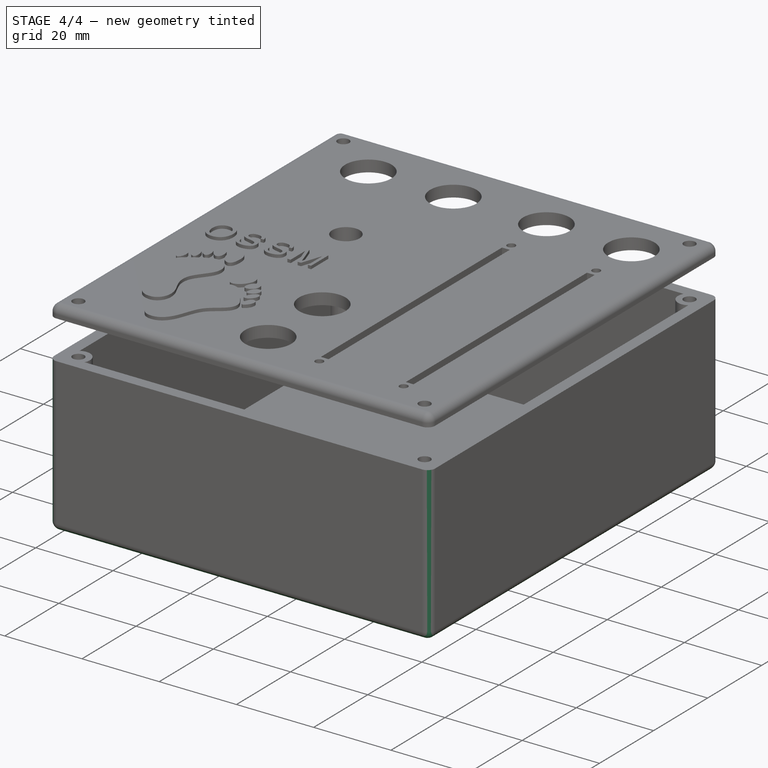
[diagram: stage 4 of 4 — iso view after this stage's code; geometry added in this stage tinted green]
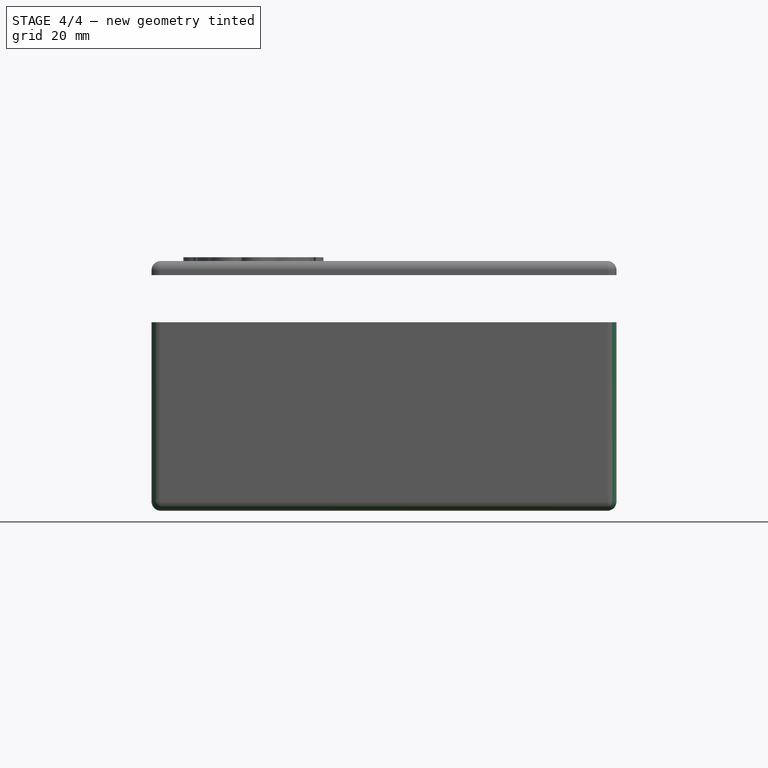
[diagram: stage 4 of 4 — front view after this stage's code; geometry added in this stage tinted green]
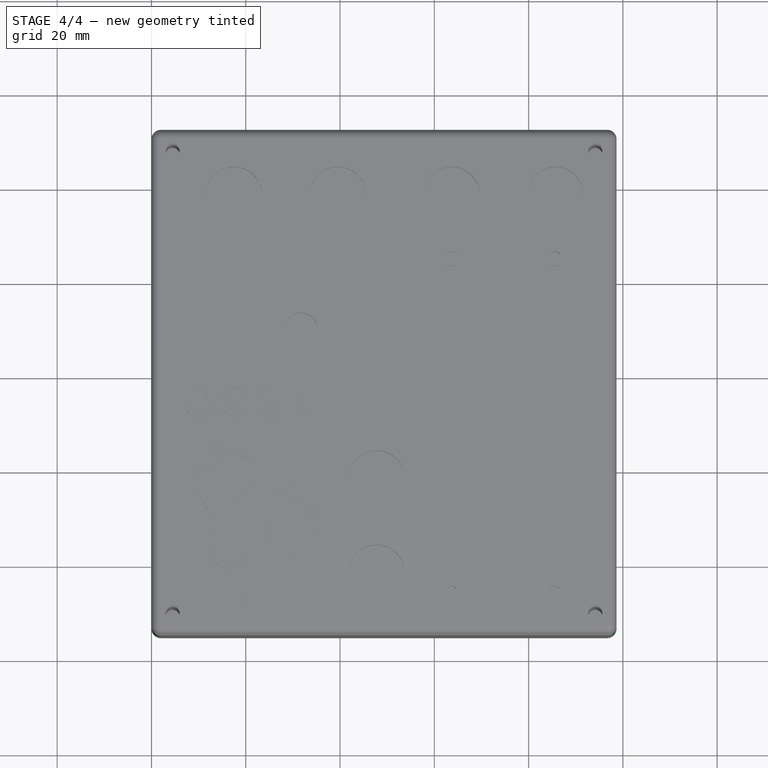
[diagram: stage 4 of 4 — top view after this stage's code; geometry added in this stage tinted green]
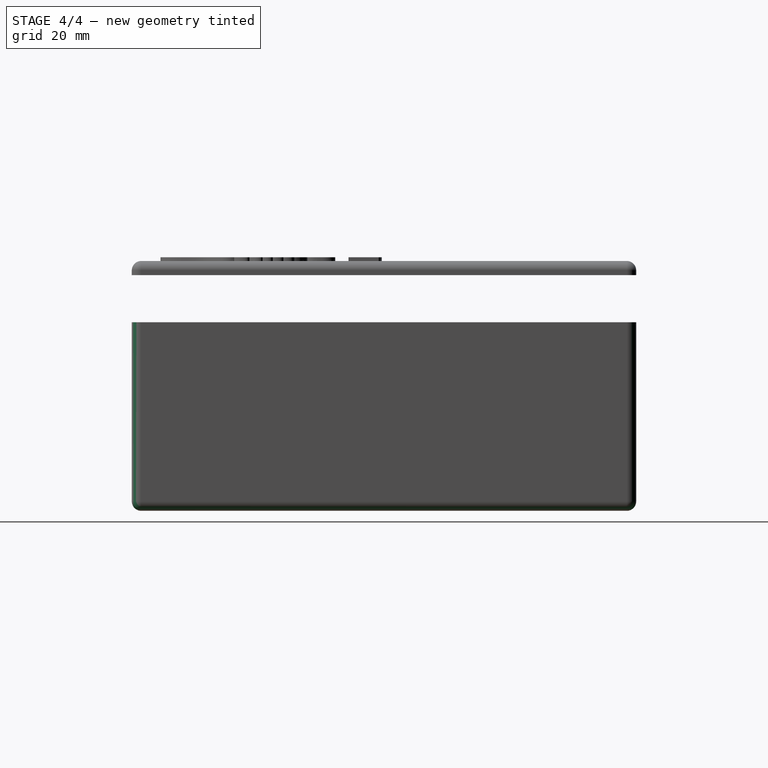
[diagram: stage 4 of 4 — right view after this stage's code; geometry added in this stage tinted green]
FEATURE [Sketcher::SketchObject] Sketch009  label="wire slot"
  ArcFitTolerance = 1e-06
  AttachmentOffset = pos=(0,0,-108) rot=(0,0,1;0rad)
  AttachmentSupport = -> [XZ_Plane002]
  FullyConstrained = false
  MakeInternals = false
  MapMode = 5
  Placement = pos=(0,108,-2.4e-14) rot=(1,0,0;1.5708rad)
  sketch-geometry (6):
    g0: ArcOfCircle CenterX=46.6912 CenterY=-31.5619 CenterZ=0 NormalX=0 NormalY=0 NormalZ=1 AngleXU=0 Radius=2.1 StartAngle=3.12769 EndAngle=6.28319
    g1: LineSegment [constr] StartX=46.6912 StartY=-31.5619 StartZ=0 EndX=52.3948 EndY=-31.5619 EndZ=0
    g2: LineSegment [constr] StartX=46.6912 StartY=-31.5619 StartZ=0 EndX=40.9181 EndY=-31.5619 EndZ=0
    g3: LineSegment StartX=44.5914 StartY=-31.5327 StartZ=0 EndX=44.5914 EndY=-6.48175 EndZ=0
    g4: LineSegment StartX=48.7912 StartY=-31.5619 StartZ=0 EndX=48.7912 EndY=-6.14991 EndZ=0
    g5: LineSegment StartX=44.5914 StartY=-6.48175 StartZ=0 EndX=48.7912 EndY=-6.14991 EndZ=0
  constraints (12):
    c: Diameter(g0) = 4.2
    c: Coincident(g1,g0)
    c: Horizontal(g1)
    c: Coincident(g2,g0)
    c: Horizontal(g2)
    c: Vertical(g3)
    c: Tangent(g4,g0) = -1.5708
    c: Vertical(g4)
    c: PointOnObject(g0,g1)
    c: Coincident(g0,g3)
    c: Coincident(g5,g3)
    c: Coincident(g5,g4)
FEATURE [PartDesign::Pocket] Pocket002
  BaseFeature = -> Pad004
  Direction = (0,1,-2e-16)
  Length = 5
  Length2 = 5
  Profile = -> Sketch009
  ReferenceAxis = -> Sketch009 [N_Axis]
  Refine = true
  Suppressed = false
  Type = 1
FEATURE [PartDesign::Fillet] Fillet
  Base = -> Pocket002 [Edge51,Edge52,Edge50,Edge49,Edge48,Edge26,Edge21,Edge25]
  BaseFeature = -> Pocket002
  Radius = 2
  Refine = true
  SupportTransform = false
  Suppressed = false
  UseAllEdges = false
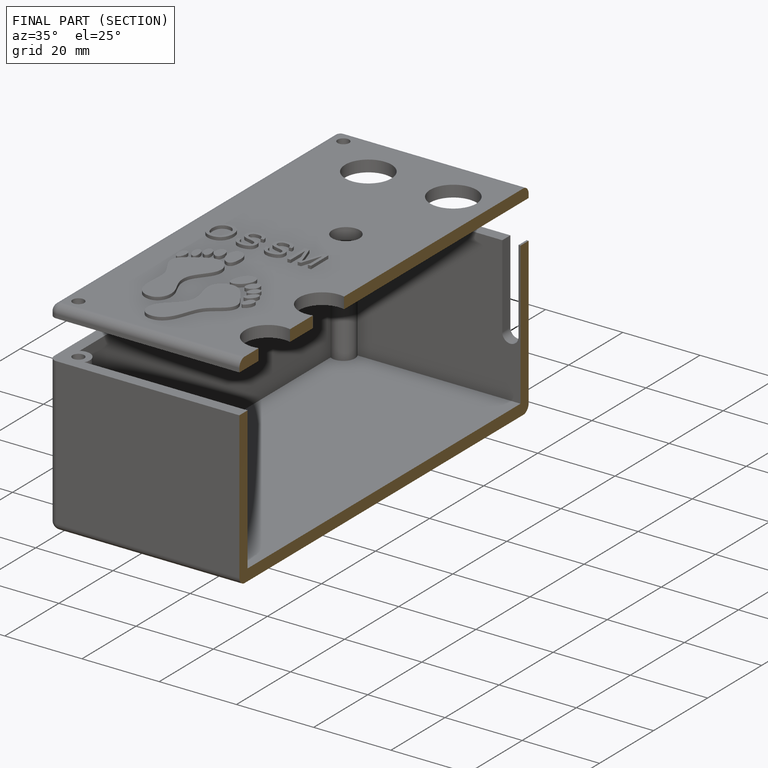
[diagram: finished part — half-section view (interior)]
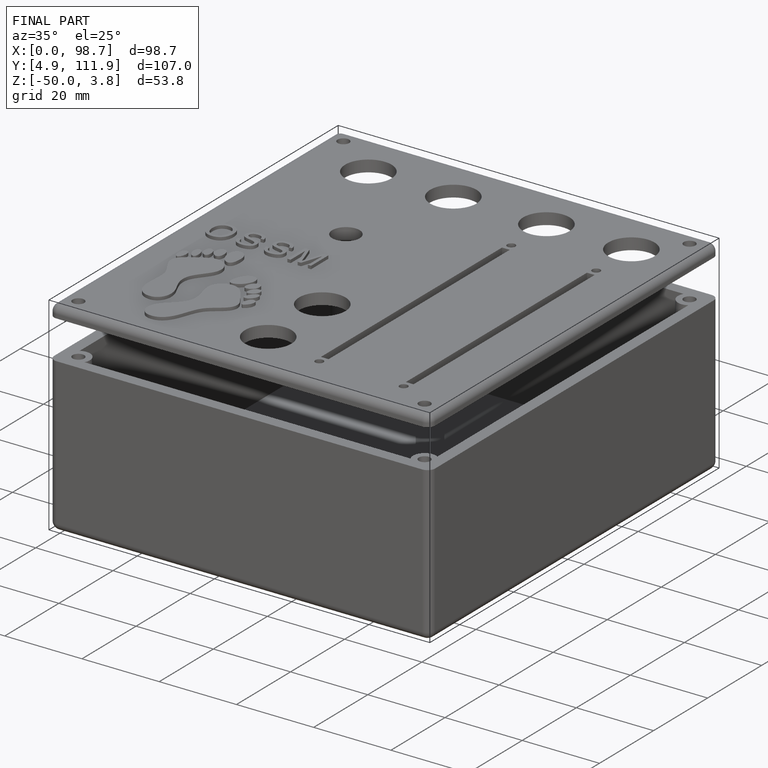
[diagram: finished part — iso view with bounding-box wireframe]
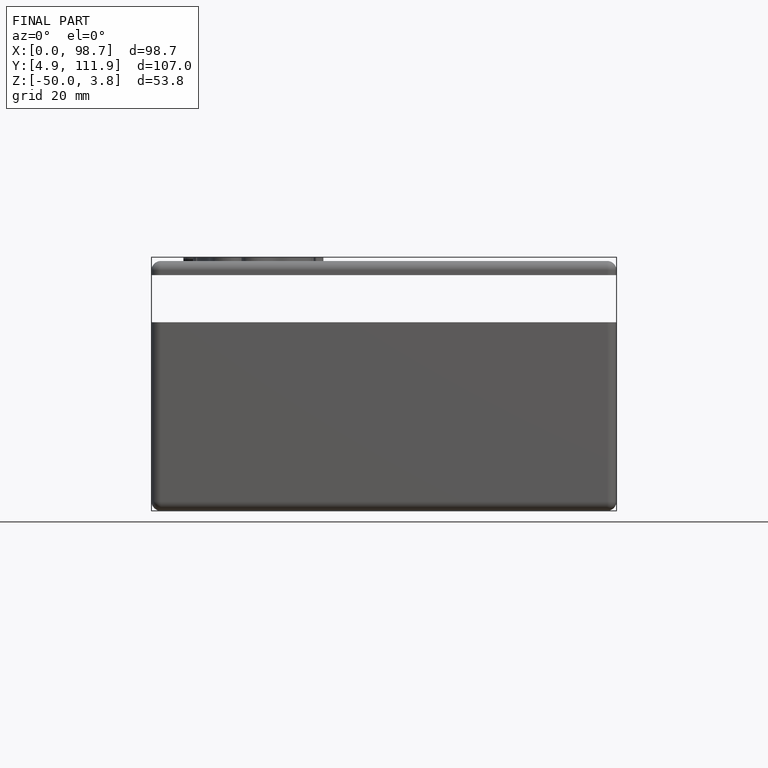
[diagram: finished part — front view with bounding-box wireframe]
